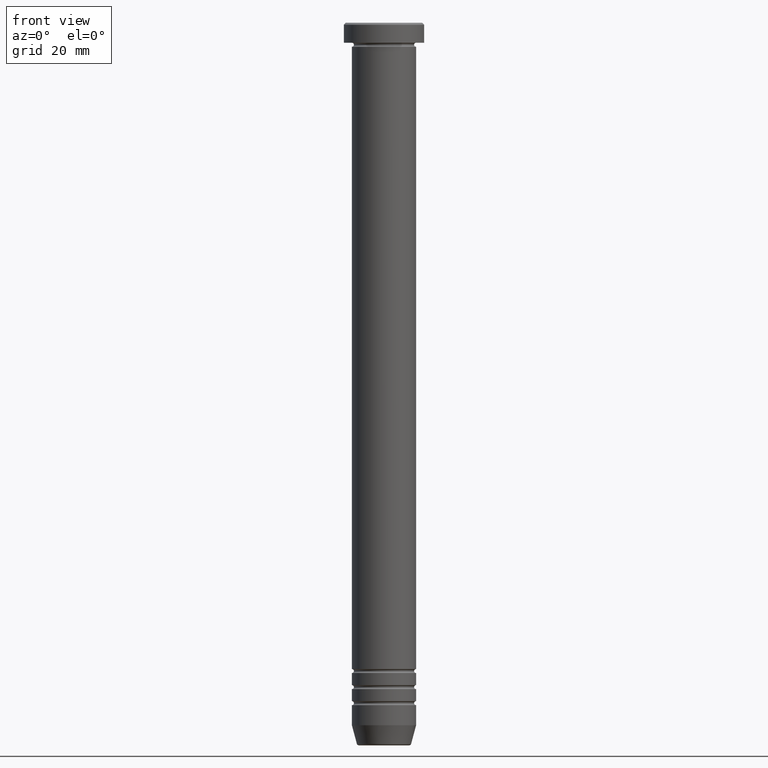
[diagram: clean part render]
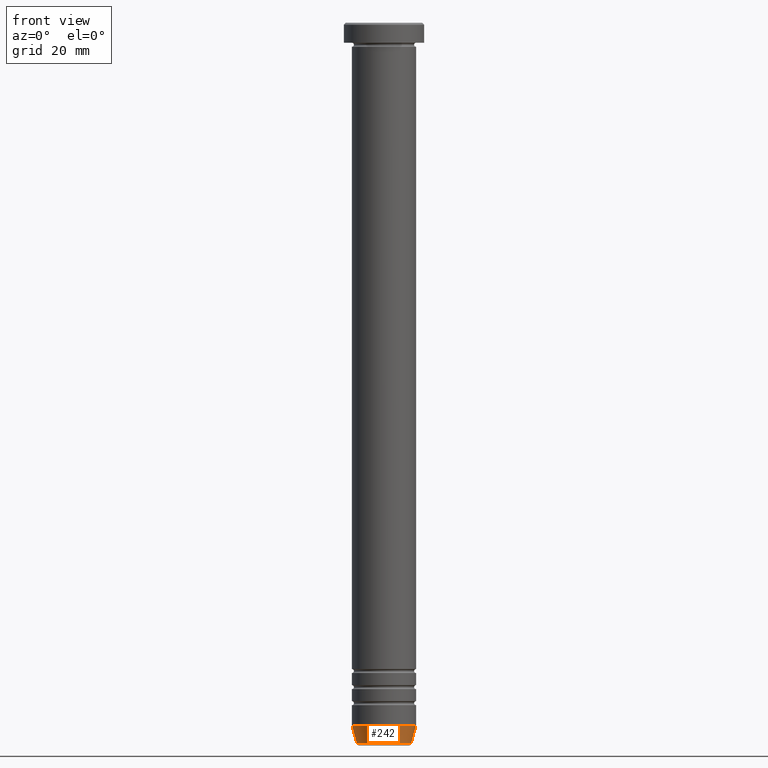
[diagram: same view with one face highlighted and labeled with its STEP entity id]
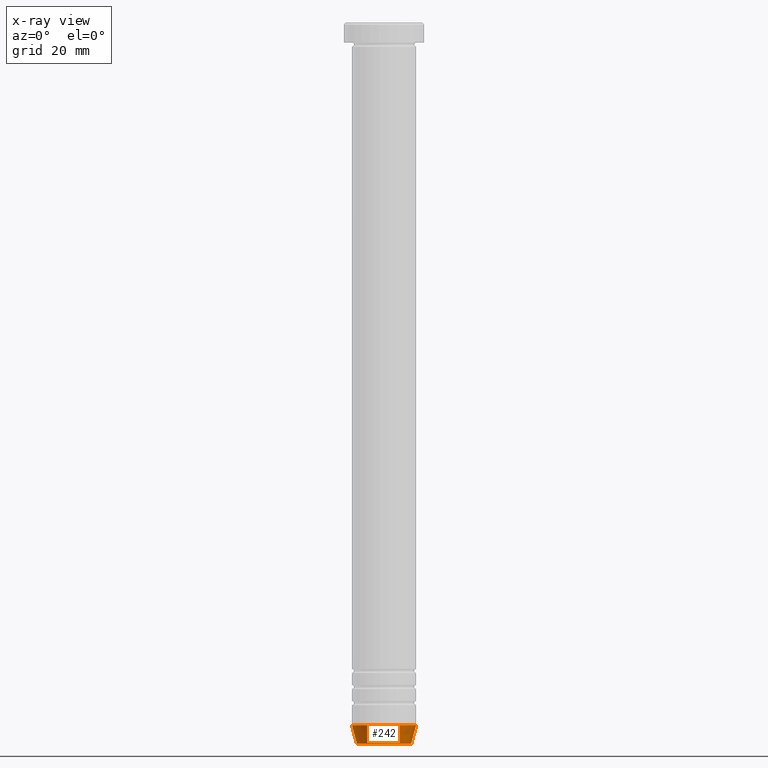
[diagram: x-ray of the same camera — body ghosted, the highlighted face saturated]
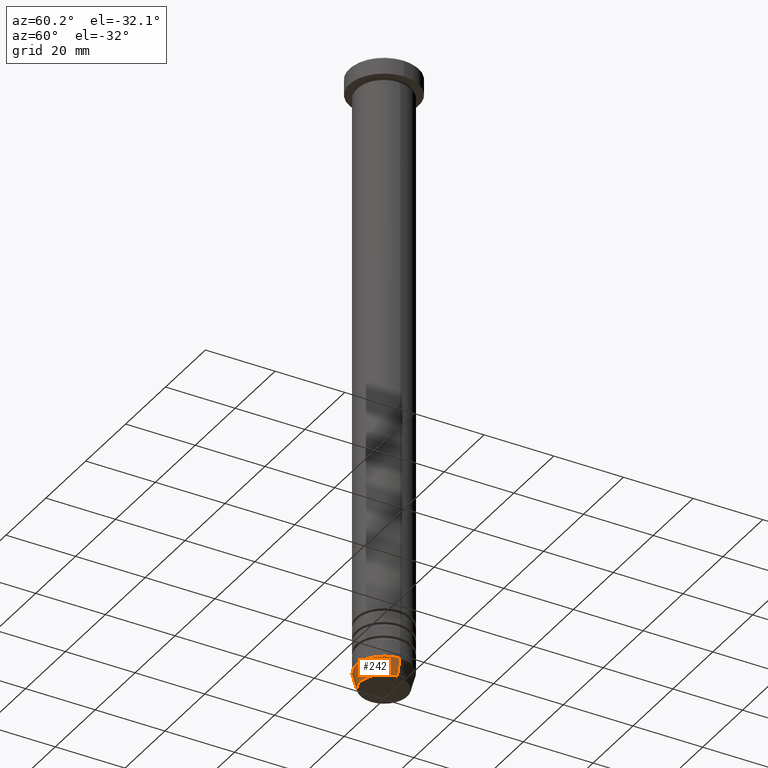
[diagram: same view with one face highlighted and labeled with its STEP entity id]
A machine part, front view. The second image highlights one B-rep face of the part: STEP entity #242.
The next image is the same camera in x-ray: the body ghosted, the highlighted face saturated — about 0% of this face is hidden behind the body in this view.
A second angle (auxiliary view) of the same face is appended — the face is thin or edge-on in the first view.
In plain terms, the highlighted conical surface has half-angle 15 deg.
Its self-contained STEP definition (entity closure, byte-faithful):
#22 = LINE ( 'NONE', #261, #150 ) ;
#94 = EDGE_CURVE ( 'NONE', #337, #840, #22, .T. ) ;
#114 = VERTEX_POINT ( 'NONE', #407 ) ;
#119 = ORIENTED_EDGE ( 'NONE', *, *, #156, .T. ) ;
#142 = CARTESIAN_POINT ( 'NONE',  ( 0.000000000000000000, 0.000000000000000000, -180.0000000000000000 ) ) ;
#150 = VECTOR ( 'NONE', #415, 1000.000000000000114 ) ;
#156 = EDGE_CURVE ( 'NONE', #940, #114, #490, .T. ) ;
#201 = ORIENTED_EDGE ( 'NONE', *, *, #231, .T. ) ;
#207 = CIRCLE ( 'NONE', #830, 6.759553456999437770 ) ;
#231 = EDGE_CURVE ( 'NONE', #337, #940, #207, .T. ) ;
#242 = ADVANCED_FACE ( 'NONE', ( #943 ), #1011, .T. ) ;
#261 = CARTESIAN_POINT ( 'NONE',  ( -6.660254037844388186, 8.156458788954364706E-16, -180.0000000000000000 ) ) ;
#266 = DIRECTION ( 'NONE',  ( -1.000000000000000000, 0.000000000000000000, 0.000000000000000000 ) ) ;
#272 = CARTESIAN_POINT ( 'NONE',  ( 0.000000000000000000, 0.000000000000000000, -179.6294095225512422 ) ) ;
#333 = AXIS2_PLACEMENT_3D ( 'NONE', #142, #619, #776 ) ;
#334 = CARTESIAN_POINT ( 'NONE',  ( 6.660254037844388186, 0.000000000000000000, -180.0000000000000000 ) ) ;
#337 = VERTEX_POINT ( 'NONE', #851 ) ;
#349 = ORIENTED_EDGE ( 'NONE', *, *, #94, .F. ) ;
#395 = ORIENTED_EDGE ( 'NONE', *, *, #1051, .F. ) ;
#407 = CARTESIAN_POINT ( 'NONE',  ( 8.000000000000000000, 0.000000000000000000, -175.0000000000000284 ) ) ;
#415 = DIRECTION ( 'NONE',  ( -0.2588190451025215166, 3.169619151431774802E-17, 0.9659258262890679791 ) ) ;
#428 = CARTESIAN_POINT ( 'NONE',  ( 0.000000000000000000, 0.000000000000000000, -175.0000000000000284 ) ) ;
#490 = LINE ( 'NONE', #334, #867 ) ;
#553 = AXIS2_PLACEMENT_3D ( 'NONE', #428, #839, #990 ) ;
#573 = CIRCLE ( 'NONE', #553, 8.000000000000000000 ) ;
#593 = DIRECTION ( 'NONE',  ( -0.000000000000000000, -0.000000000000000000, 1.000000000000000000 ) ) ;
#619 = DIRECTION ( 'NONE',  ( -0.000000000000000000, -0.000000000000000000, 1.000000000000000000 ) ) ;
#721 = CARTESIAN_POINT ( 'NONE',  ( 6.759553456999437770, 0.000000000000000000, -179.6294095225512422 ) ) ;
#727 = CARTESIAN_POINT ( 'NONE',  ( -8.000000000000000000, 9.797174393178825657E-16, -175.0000000000000284 ) ) ;
#731 = DIRECTION ( 'NONE',  ( 0.2588190451025215166, 0.000000000000000000, 0.9659258262890679791 ) ) ;
#776 = DIRECTION ( 'NONE',  ( 1.000000000000000000, 0.000000000000000000, 0.000000000000000000 ) ) ;
#830 = AXIS2_PLACEMENT_3D ( 'NONE', #272, #593, #266 ) ;
#839 = DIRECTION ( 'NONE',  ( -0.000000000000000000, -0.000000000000000000, 1.000000000000000000 ) ) ;
#840 = VERTEX_POINT ( 'NONE', #727 ) ;
#851 = CARTESIAN_POINT ( 'NONE',  ( -6.759553456999437770, 9.037619948979306213E-16, -179.6294095225512422 ) ) ;
#867 = VECTOR ( 'NONE', #731, 1000.000000000000114 ) ;
#888 = EDGE_LOOP ( 'NONE', ( #349, #201, #119, #395 ) ) ;
#940 = VERTEX_POINT ( 'NONE', #721 ) ;
#943 = FACE_OUTER_BOUND ( 'NONE', #888, .T. ) ;
#990 = DIRECTION ( 'NONE',  ( 1.000000000000000000, 0.000000000000000000, 0.000000000000000000 ) ) ;
#1011 = CONICAL_SURFACE ( 'NONE', #333, 6.660254037844388186, 0.2617993877991502960 ) ;
#1051 = EDGE_CURVE ( 'NONE', #840, #114, #573, .T. ) ;